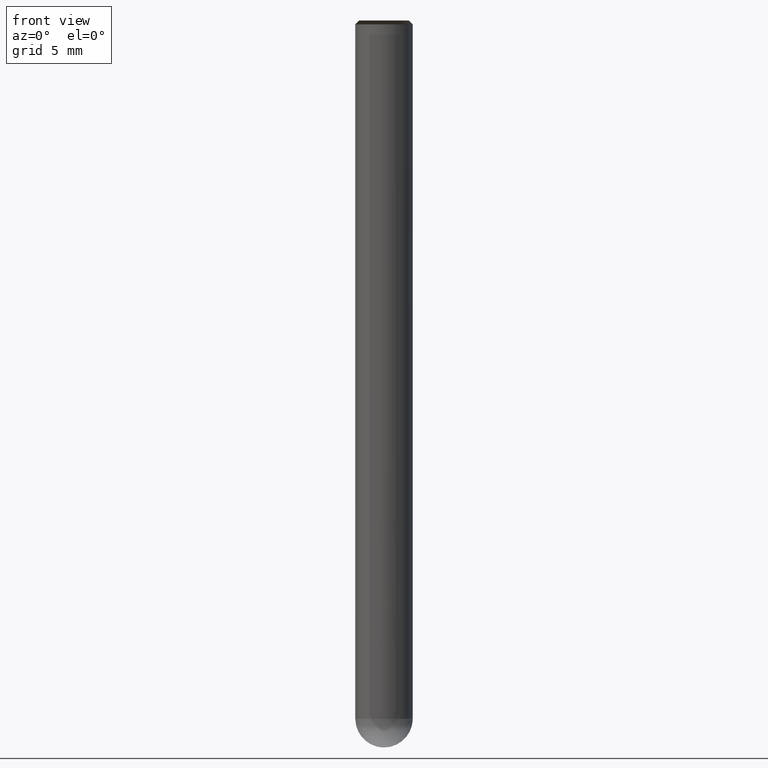
[diagram: clean part render]
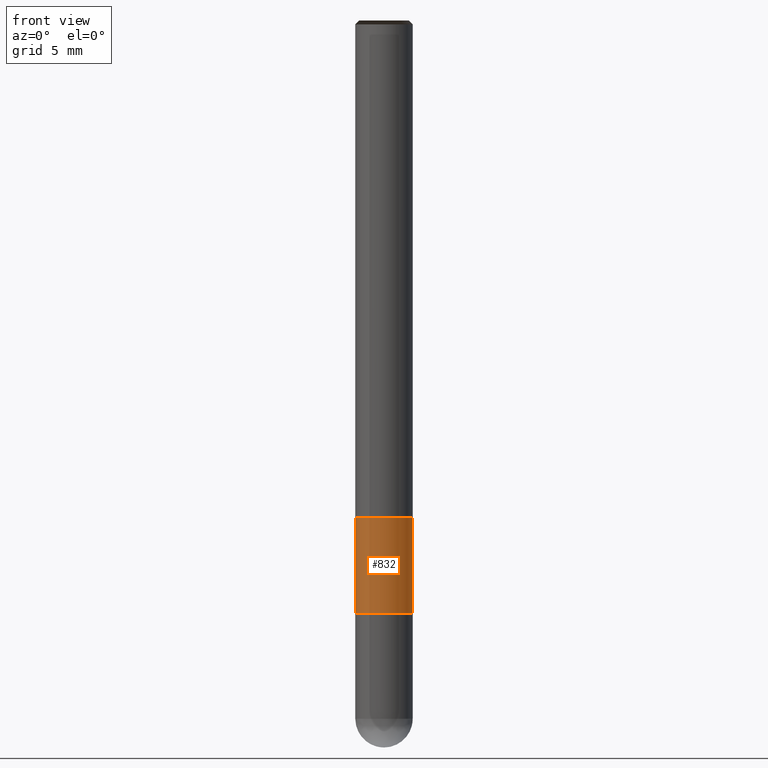
[diagram: same view with one face highlighted and labeled with its STEP entity id]
A machine part, front view. The second image highlights one B-rep face of the part: STEP entity #832.
In plain terms, the highlighted face is a freeform B-spline surface patch.
Its self-contained STEP definition (entity closure, byte-faithful):
#551=CARTESIAN_POINT('',(1.5,0.0,-5.0));
#555=CARTESIAN_POINT('',(-1.5,0.0,-5.0));
#563=CARTESIAN_POINT('',(-1.5,-1.5,-5.0));
#564=CARTESIAN_POINT('',(0.0,-1.5,-5.0));
#565=CARTESIAN_POINT('',(1.5,-1.5,-5.0));
#566=CARTESIAN_POINT('',(1.5,0.0,0.0));
#570=CARTESIAN_POINT('',(-1.5,0.0,0.0));
#582=CARTESIAN_POINT('',(-1.5,-1.5,0.0));
#583=CARTESIAN_POINT('',(0.0,-1.5,0.0));
#584=CARTESIAN_POINT('',(1.5,-1.5,0.0));
#813=(
BOUNDED_SURFACE()
B_SPLINE_SURFACE(1,2,(
(#555,#563,#564,#565,#551),
(#570,#582,#583,#584,#566)
), .UNSPECIFIED.,.F.,.F.,.F.)
B_SPLINE_SURFACE_WITH_KNOTS((2,2),(3,2,3),(
0.0,1.0),(
0.0,0.5,1.0), .UNSPECIFIED.)
GEOMETRIC_REPRESENTATION_ITEM()
RATIONAL_B_SPLINE_SURFACE(((1.0,0.707106781187,1.0,0.707106781187,1.0),
(1.0,0.707106781187,1.0,0.707106781187,1.0)
))
REPRESENTATION_ITEM('')
SURFACE()
);
#814=(
BOUNDED_CURVE()
B_SPLINE_CURVE(2,(#551,#565,#564,#563,#555),.UNSPECIFIED.,.F.,.F.)
B_SPLINE_CURVE_WITH_KNOTS((3,2,3),
(0.0,0.5,1.0),.UNSPECIFIED.)
CURVE()
GEOMETRIC_REPRESENTATION_ITEM()
RATIONAL_B_SPLINE_CURVE((1.0,0.707106781187,1.0,0.707106781187,1.0))
REPRESENTATION_ITEM('')
);
#815=(
BOUNDED_CURVE()
B_SPLINE_CURVE(1,(#555,#570),.UNSPECIFIED.,.F.,.F.)
B_SPLINE_CURVE_WITH_KNOTS((2,2),
(0.0,1.0),.UNSPECIFIED.)
CURVE()
GEOMETRIC_REPRESENTATION_ITEM()
RATIONAL_B_SPLINE_CURVE((1.0,1.0))
REPRESENTATION_ITEM('')
);
#816=(
BOUNDED_CURVE()
B_SPLINE_CURVE(2,(#570,#582,#583,#584,#566),.UNSPECIFIED.,.F.,.F.)
B_SPLINE_CURVE_WITH_KNOTS((3,2,3),
(0.0,0.5,1.0),.UNSPECIFIED.)
CURVE()
GEOMETRIC_REPRESENTATION_ITEM()
RATIONAL_B_SPLINE_CURVE((1.0,0.707106781187,1.0,0.707106781187,1.0))
REPRESENTATION_ITEM('')
);
#817=(
BOUNDED_CURVE()
B_SPLINE_CURVE(1,(#566,#551),.UNSPECIFIED.,.F.,.F.)
B_SPLINE_CURVE_WITH_KNOTS((2,2),
(0.0,1.0),.UNSPECIFIED.)
CURVE()
GEOMETRIC_REPRESENTATION_ITEM()
RATIONAL_B_SPLINE_CURVE((1.0,1.0))
REPRESENTATION_ITEM('')
);
#818=VERTEX_POINT('',#551);
#819=VERTEX_POINT('',#555);
#820=VERTEX_POINT('',#566);
#821=VERTEX_POINT('',#570);
#822=EDGE_CURVE('',#818,#819,#814,.T.);
#823=EDGE_CURVE('',#819,#821,#815,.T.);
#824=EDGE_CURVE('',#821,#820,#816,.T.);
#825=EDGE_CURVE('',#820,#818,#817,.T.);
#826=ORIENTED_EDGE('',*,*,#822,.T.);
#827=ORIENTED_EDGE('',*,*,#823,.T.);
#828=ORIENTED_EDGE('',*,*,#824,.T.);
#829=ORIENTED_EDGE('',*,*,#825,.T.);
#830=EDGE_LOOP('',(#826,#827,#828,#829));
#831=FACE_OUTER_BOUND('',#830,.T.);
#832=ADVANCED_FACE('',(#831),#813,.T.);